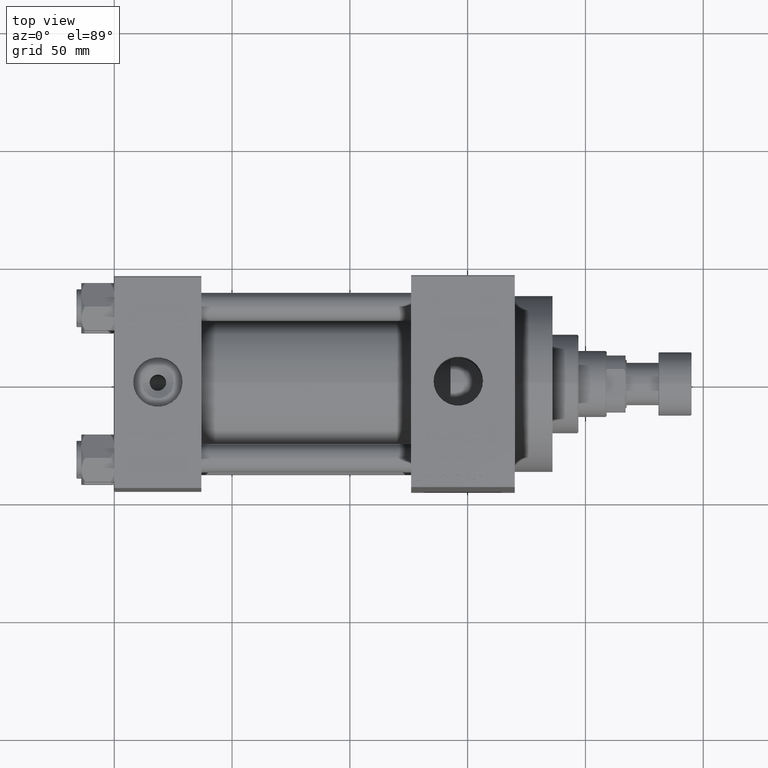
[diagram: clean part render]
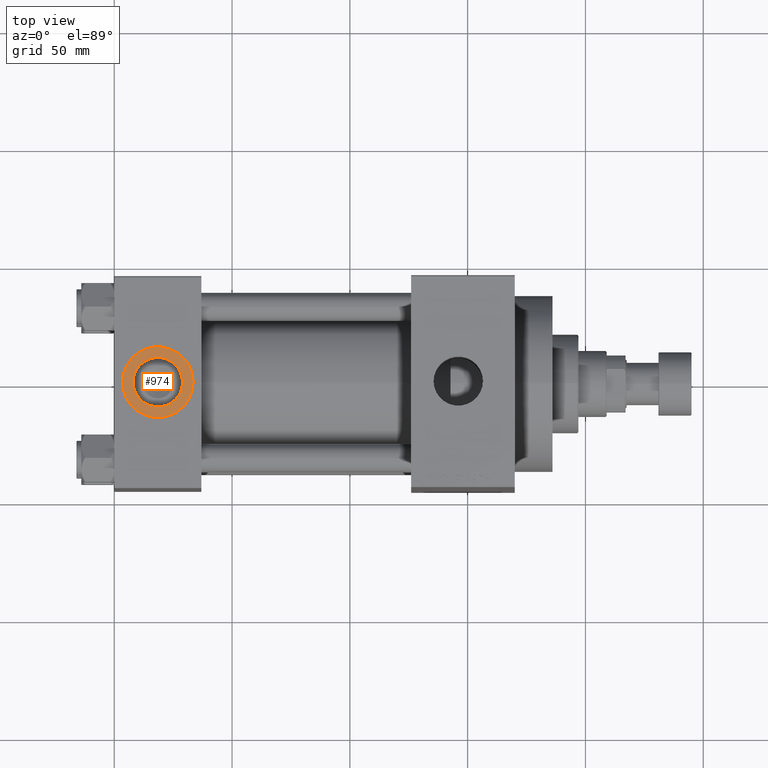
[diagram: same view with one face highlighted and labeled with its STEP entity id]
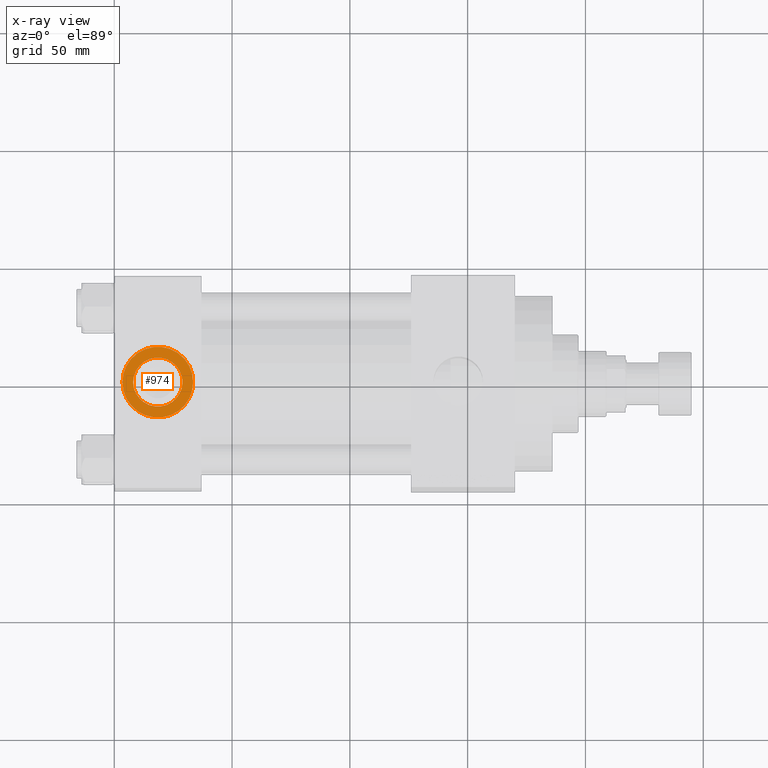
[diagram: x-ray of the same camera — body ghosted, the highlighted face saturated]
A machine part, top view. The second image highlights one B-rep face of the part: STEP entity #974.
The next image is the same camera in x-ray: the body ghosted, the highlighted face saturated — about 0% of this face is hidden behind the body in this view.
In plain terms, the highlighted planar face has unit normal (0, 0, 1).
Its self-contained STEP definition (entity closure, byte-faithful):
#740 = AXIS2_PLACEMENT_3D ( 'NONE', #23956, #24799, #31310 ) ;
#974 = ADVANCED_FACE ( 'NONE', ( #46507, #28427 ), #9881, .T. ) ;
#1564 = CARTESIAN_POINT ( 'NONE',  ( 3.499999999999997780, -1.030609413311661928E-14, 44.79999999999999716 ) ) ;
#3177 = CIRCLE ( 'NONE', #37804, 15.00000000000000355 ) ;
#5253 = CARTESIAN_POINT ( 'NONE',  ( 18.50000000000000000, -1.214306433183764966E-14, 44.79999999999999716 ) ) ;
#6498 = CARTESIAN_POINT ( 'NONE',  ( 18.50000000000000000, -1.214306433183764966E-14, 44.79999999999999716 ) ) ;
#6666 = AXIS2_PLACEMENT_3D ( 'NONE', #6498, #21187, #10355 ) ;
#7573 = CARTESIAN_POINT ( 'NONE',  ( 18.50000000000000000, -1.214306433183764966E-14, 44.79999999999999716 ) ) ;
#8555 = CARTESIAN_POINT ( 'NONE',  ( 33.50000000000000000, -1.214306433183764966E-14, 44.79999999999999716 ) ) ;
#9210 = ORIENTED_EDGE ( 'NONE', *, *, #46961, .F. ) ;
#9881 = PLANE ( 'NONE',  #6666 ) ;
#10355 = DIRECTION ( 'NONE',  ( 1.000000000000000000, 0.000000000000000000, -0.000000000000000000 ) ) ;
#10707 = DIRECTION ( 'NONE',  ( 0.000000000000000000, 0.000000000000000000, 1.000000000000000000 ) ) ;
#11045 = VERTEX_POINT ( 'NONE', #30129 ) ;
#12675 = VERTEX_POINT ( 'NONE', #1564 ) ;
#14301 = DIRECTION ( 'NONE',  ( 1.000000000000000000, 0.000000000000000000, 0.000000000000000000 ) ) ;
#15148 = VERTEX_POINT ( 'NONE', #8555 ) ;
#15546 = DIRECTION ( 'NONE',  ( 1.000000000000000000, 0.000000000000000000, 0.000000000000000000 ) ) ;
#16176 = EDGE_CURVE ( 'NONE', #29684, #11045, #24597, .T. ) ;
#17689 = CIRCLE ( 'NONE', #20773, 10.48000000000000043 ) ;
#17945 = EDGE_LOOP ( 'NONE', ( #43948, #9210 ) ) ;
#18252 = AXIS2_PLACEMENT_3D ( 'NONE', #37502, #22781, #15546 ) ;
#20773 = AXIS2_PLACEMENT_3D ( 'NONE', #5253, #20908, #35128 ) ;
#20908 = DIRECTION ( 'NONE',  ( 0.000000000000000000, 0.000000000000000000, 1.000000000000000000 ) ) ;
#21187 = DIRECTION ( 'NONE',  ( 0.000000000000000000, 0.000000000000000000, 1.000000000000000000 ) ) ;
#22613 = EDGE_CURVE ( 'NONE', #12675, #15148, #3177, .T. ) ;
#22781 = DIRECTION ( 'NONE',  ( 0.000000000000000000, 0.000000000000000000, 1.000000000000000000 ) ) ;
#23956 = CARTESIAN_POINT ( 'NONE',  ( 18.50000000000000000, -1.214306433183764966E-14, 44.79999999999999716 ) ) ;
#24597 = CIRCLE ( 'NONE', #740, 10.48000000000000043 ) ;
#24799 = DIRECTION ( 'NONE',  ( 0.000000000000000000, 0.000000000000000000, 1.000000000000000000 ) ) ;
#26017 = CARTESIAN_POINT ( 'NONE',  ( 28.98000000000000043, -1.214306433183764966E-14, 44.79999999999999716 ) ) ;
#28427 = FACE_OUTER_BOUND ( 'NONE', #37922, .T. ) ;
#29684 = VERTEX_POINT ( 'NONE', #26017 ) ;
#30129 = CARTESIAN_POINT ( 'NONE',  ( 8.019999999999999574, -1.085963448633122417E-14, 44.79999999999999716 ) ) ;
#31310 = DIRECTION ( 'NONE',  ( 1.000000000000000000, 0.000000000000000000, 0.000000000000000000 ) ) ;
#35128 = DIRECTION ( 'NONE',  ( 1.000000000000000000, 0.000000000000000000, 0.000000000000000000 ) ) ;
#36083 = EDGE_CURVE ( 'NONE', #15148, #12675, #39034, .T. ) ;
#37502 = CARTESIAN_POINT ( 'NONE',  ( 18.50000000000000000, -1.214306433183764966E-14, 44.79999999999999716 ) ) ;
#37804 = AXIS2_PLACEMENT_3D ( 'NONE', #7573, #10707, #14301 ) ;
#37922 = EDGE_LOOP ( 'NONE', ( #39526, #43940 ) ) ;
#39034 = CIRCLE ( 'NONE', #18252, 15.00000000000000355 ) ;
#39526 = ORIENTED_EDGE ( 'NONE', *, *, #36083, .T. ) ;
#43940 = ORIENTED_EDGE ( 'NONE', *, *, #22613, .T. ) ;
#43948 = ORIENTED_EDGE ( 'NONE', *, *, #16176, .F. ) ;
#46507 = FACE_BOUND ( 'NONE', #17945, .T. ) ;
#46961 = EDGE_CURVE ( 'NONE', #11045, #29684, #17689, .T. ) ;